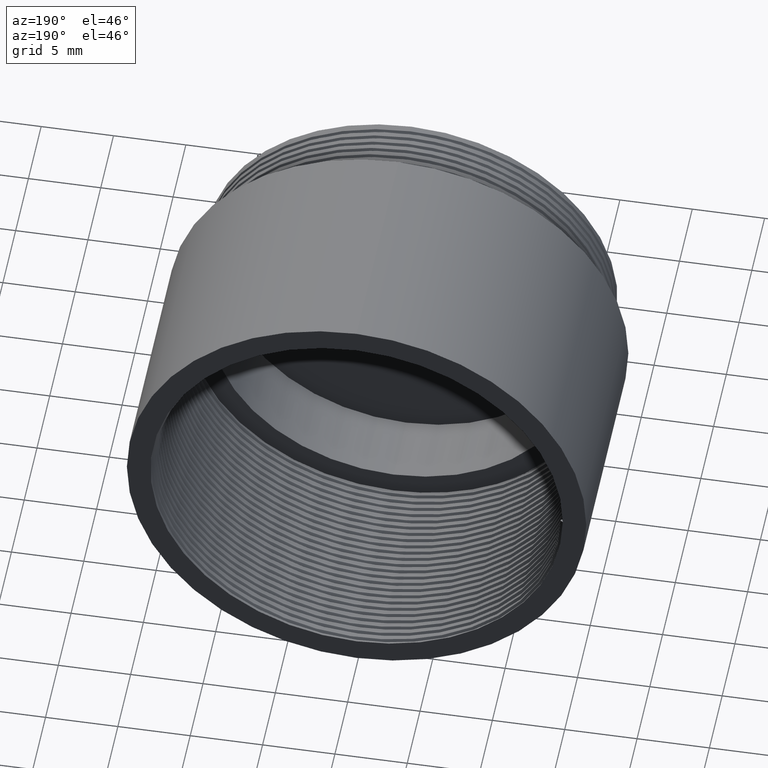
[diagram: clean part render]
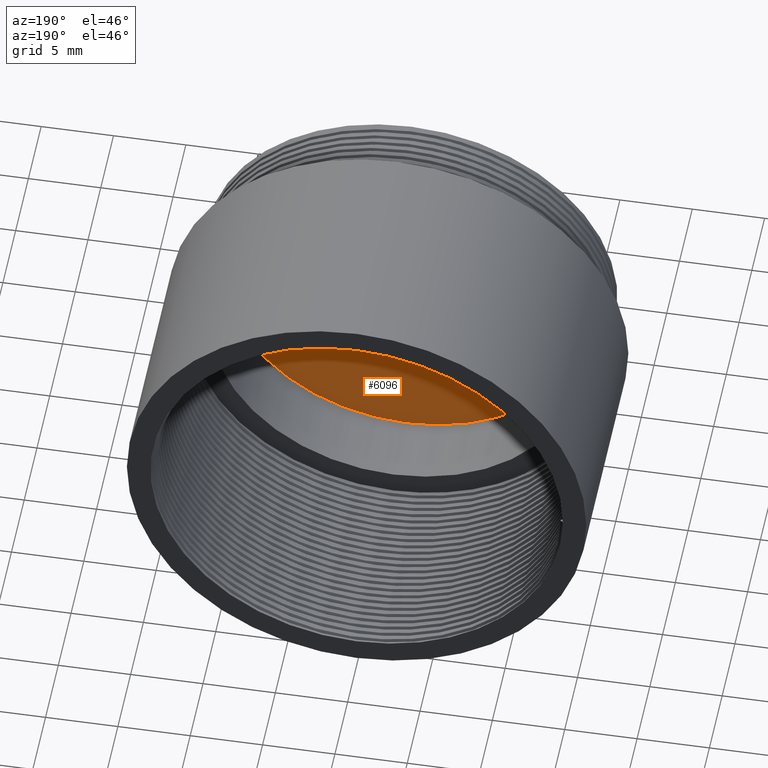
[diagram: same view with one face highlighted and labeled with its STEP entity id]
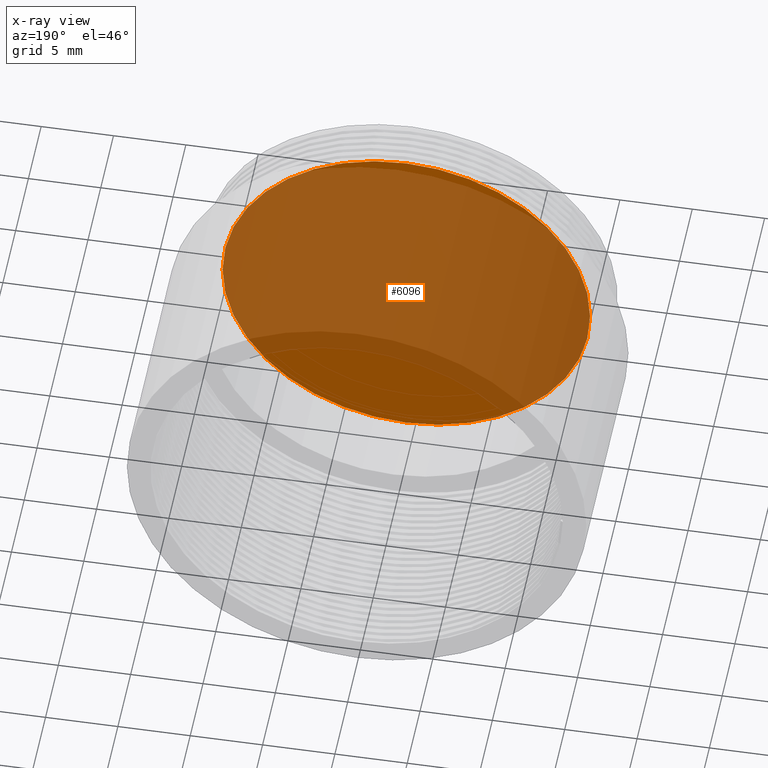
[diagram: x-ray of the same camera — body ghosted, the highlighted face saturated]
A machine part, auxiliary view. The second image highlights one B-rep face of the part: STEP entity #6096.
The next image is the same camera in x-ray: the body ghosted, the highlighted face saturated — about 84% of this face is hidden behind the body in this view.
In plain terms, the highlighted planar face has unit normal (-0, 1, 0).
Its self-contained STEP definition (entity closure, byte-faithful):
#70 = VERTEX_POINT ( 'NONE', #590 ) ;
#479 = EDGE_CURVE ( 'NONE', #70, #1330, #6189, .T. ) ;
#590 = CARTESIAN_POINT ( 'NONE',  ( 1.555301434917139813E-15, 2.010000000000000231, 12.69999999999999929 ) ) ;
#711 = ORIENTED_EDGE ( 'NONE', *, *, #2000, .T. ) ;
#1330 = VERTEX_POINT ( 'NONE', #6195 ) ;
#1469 = DIRECTION ( 'NONE',  ( 0.000000000000000000, 0.000000000000000000, 1.000000000000000000 ) ) ;
#1571 = PLANE ( 'NONE',  #6626 ) ;
#1995 = CARTESIAN_POINT ( 'NONE',  ( 0.000000000000000000, 2.010000000000000231, 0.000000000000000000 ) ) ;
#2000 = EDGE_CURVE ( 'NONE', #1330, #70, #2572, .T. ) ;
#2028 = FACE_OUTER_BOUND ( 'NONE', #5343, .T. ) ;
#2062 = DIRECTION ( 'NONE',  ( 1.000000000000000000, 0.000000000000000000, 0.000000000000000000 ) ) ;
#2128 = CARTESIAN_POINT ( 'NONE',  ( 0.000000000000000000, 2.010000000000000231, 0.000000000000000000 ) ) ;
#2572 = CIRCLE ( 'NONE', #6524, 12.69999999999999929 ) ;
#2674 = AXIS2_PLACEMENT_3D ( 'NONE', #1995, #6310, #1469 ) ;
#3341 = ORIENTED_EDGE ( 'NONE', *, *, #479, .T. ) ;
#4773 = DIRECTION ( 'NONE',  ( -0.000000000000000000, 1.000000000000000000, 0.000000000000000000 ) ) ;
#4886 = CARTESIAN_POINT ( 'NONE',  ( 0.000000000000000000, 2.010000000000000231, 0.000000000000000000 ) ) ;
#5343 = EDGE_LOOP ( 'NONE', ( #711, #3341 ) ) ;
#6096 = ADVANCED_FACE ( 'NONE', ( #2028 ), #1571, .T. ) ;
#6189 = CIRCLE ( 'NONE', #2674, 12.69999999999999929 ) ;
#6195 = CARTESIAN_POINT ( 'NONE',  ( 0.000000000000000000, 2.010000000000000231, -12.69999999999999929 ) ) ;
#6310 = DIRECTION ( 'NONE',  ( 0.000000000000000000, 1.000000000000000000, 0.000000000000000000 ) ) ;
#6423 = DIRECTION ( 'NONE',  ( 0.000000000000000000, 1.000000000000000000, 0.000000000000000000 ) ) ;
#6523 = DIRECTION ( 'NONE',  ( 0.000000000000000000, 0.000000000000000000, 1.000000000000000000 ) ) ;
#6524 = AXIS2_PLACEMENT_3D ( 'NONE', #4886, #6423, #6523 ) ;
#6626 = AXIS2_PLACEMENT_3D ( 'NONE', #2128, #4773, #2062 ) ;